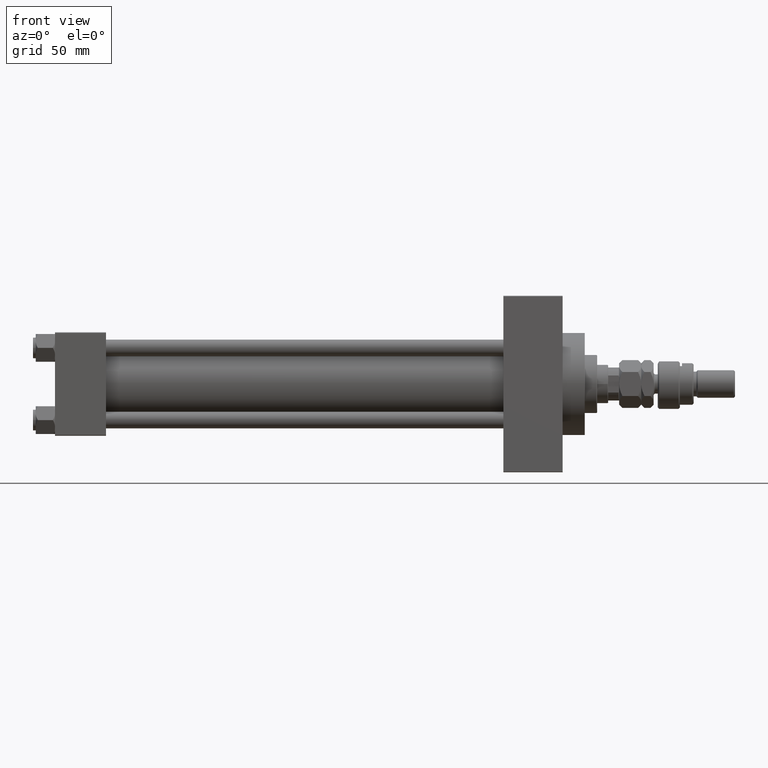
[diagram: clean part render]
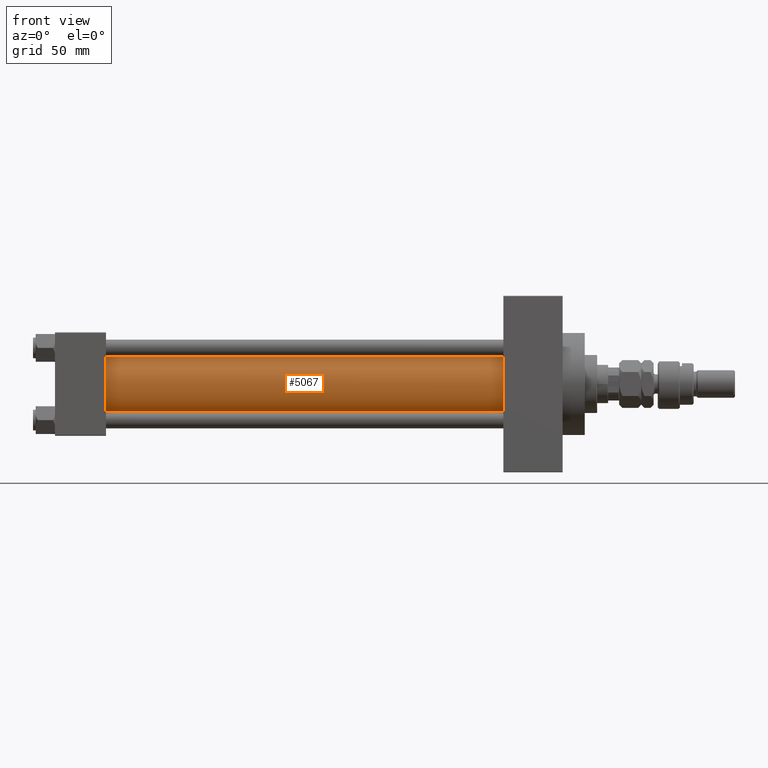
[diagram: same view with one face highlighted and labeled with its STEP entity id]
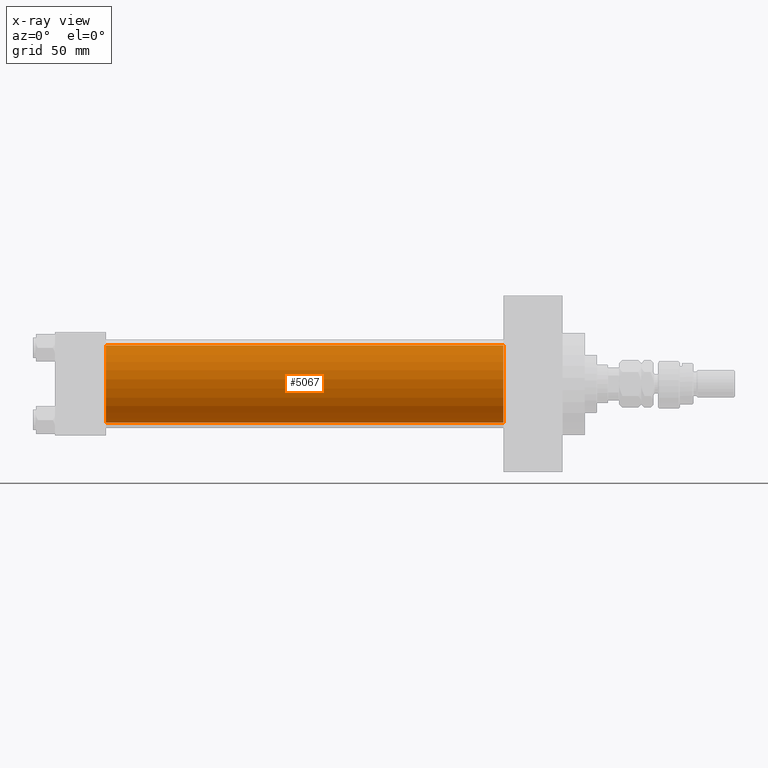
[diagram: x-ray of the same camera — body ghosted, the highlighted face saturated]
A machine part, front view. The second image highlights one B-rep face of the part: STEP entity #5067.
The next image is the same camera in x-ray: the body ghosted, the highlighted face saturated — about 0% of this face is hidden behind the body in this view.
In plain terms, the highlighted cylindrical surface (partial cylindrical patch) has radius 28 mm, axis along (-1, -0, -0).
Its self-contained STEP definition (entity closure, byte-faithful):
#1399 = CARTESIAN_POINT ( 'NONE',  ( 324.9999999999999432, -2.602085213965210642E-15, 0.000000000000000000 ) ) ;
#1418 = EDGE_CURVE ( 'NONE', #28973, #47628, #12535, .T. ) ;
#1455 = LINE ( 'NONE', #16907, #42544 ) ;
#3926 = CYLINDRICAL_SURFACE ( 'NONE', #24676, 28.00000000000000000 ) ;
#5067 = ADVANCED_FACE ( 'NONE', ( #42385 ), #3926, .T. ) ;
#5454 = CARTESIAN_POINT ( 'NONE',  ( 324.9999999999999432, -2.602085213965210642E-15, 28.00000000000000000 ) ) ;
#5707 = DIRECTION ( 'NONE',  ( 1.000000000000000000, 0.000000000000000000, 0.000000000000000000 ) ) ;
#8298 = CARTESIAN_POINT ( 'NONE',  ( 324.9999999999999432, 8.269258236473784371E-16, -28.00000000000000000 ) ) ;
#9103 = VECTOR ( 'NONE', #25938, 1000.000000000000000 ) ;
#10348 = CARTESIAN_POINT ( 'NONE',  ( 36.99999999999997868, -2.602085213965210642E-15, 28.00000000000000000 ) ) ;
#10608 = DIRECTION ( 'NONE',  ( 0.000000000000000000, 0.000000000000000000, 1.000000000000000000 ) ) ;
#12535 = CIRCLE ( 'NONE', #47261, 28.00000000000000000 ) ;
#14531 = LINE ( 'NONE', #42087, #9103 ) ;
#16907 = CARTESIAN_POINT ( 'NONE',  ( 324.9999999999999432, 8.269258236473784371E-16, -28.00000000000000000 ) ) ;
#17554 = CIRCLE ( 'NONE', #49037, 28.00000000000000000 ) ;
#19125 = EDGE_CURVE ( 'NONE', #23653, #47628, #1455, .T. ) ;
#19384 = DIRECTION ( 'NONE',  ( -1.000000000000000000, -0.000000000000000000, -0.000000000000000000 ) ) ;
#20259 = EDGE_CURVE ( 'NONE', #35518, #23653, #17554, .T. ) ;
#23653 = VERTEX_POINT ( 'NONE', #8298 ) ;
#24671 = EDGE_LOOP ( 'NONE', ( #40567, #46089, #27728, #37547 ) ) ;
#24676 = AXIS2_PLACEMENT_3D ( 'NONE', #27890, #19384, #26236 ) ;
#25938 = DIRECTION ( 'NONE',  ( -1.000000000000000000, -0.000000000000000000, -0.000000000000000000 ) ) ;
#26236 = DIRECTION ( 'NONE',  ( 0.000000000000000000, 0.000000000000000000, 1.000000000000000000 ) ) ;
#27728 = ORIENTED_EDGE ( 'NONE', *, *, #45098, .T. ) ;
#27890 = CARTESIAN_POINT ( 'NONE',  ( 324.9999999999999432, -2.602085213965210642E-15, 0.000000000000000000 ) ) ;
#28008 = DIRECTION ( 'NONE',  ( 0.000000000000000000, 0.000000000000000000, -1.000000000000000000 ) ) ;
#28973 = VERTEX_POINT ( 'NONE', #10348 ) ;
#31875 = CARTESIAN_POINT ( 'NONE',  ( 36.99999999999997868, -2.602085213965210642E-15, 0.000000000000000000 ) ) ;
#35518 = VERTEX_POINT ( 'NONE', #5454 ) ;
#35534 = CARTESIAN_POINT ( 'NONE',  ( 36.99999999999997868, 8.269258236473784371E-16, -28.00000000000000000 ) ) ;
#37547 = ORIENTED_EDGE ( 'NONE', *, *, #1418, .T. ) ;
#40168 = DIRECTION ( 'NONE',  ( -1.000000000000000000, -0.000000000000000000, -0.000000000000000000 ) ) ;
#40567 = ORIENTED_EDGE ( 'NONE', *, *, #19125, .F. ) ;
#40697 = DIRECTION ( 'NONE',  ( 1.000000000000000000, -0.000000000000000000, 0.000000000000000000 ) ) ;
#42087 = CARTESIAN_POINT ( 'NONE',  ( 324.9999999999999432, -2.602085213965210642E-15, 28.00000000000000000 ) ) ;
#42385 = FACE_OUTER_BOUND ( 'NONE', #24671, .T. ) ;
#42544 = VECTOR ( 'NONE', #40168, 1000.000000000000000 ) ;
#45098 = EDGE_CURVE ( 'NONE', #35518, #28973, #14531, .T. ) ;
#46089 = ORIENTED_EDGE ( 'NONE', *, *, #20259, .F. ) ;
#47261 = AXIS2_PLACEMENT_3D ( 'NONE', #31875, #40697, #10608 ) ;
#47628 = VERTEX_POINT ( 'NONE', #35534 ) ;
#49037 = AXIS2_PLACEMENT_3D ( 'NONE', #1399, #5707, #28008 ) ;